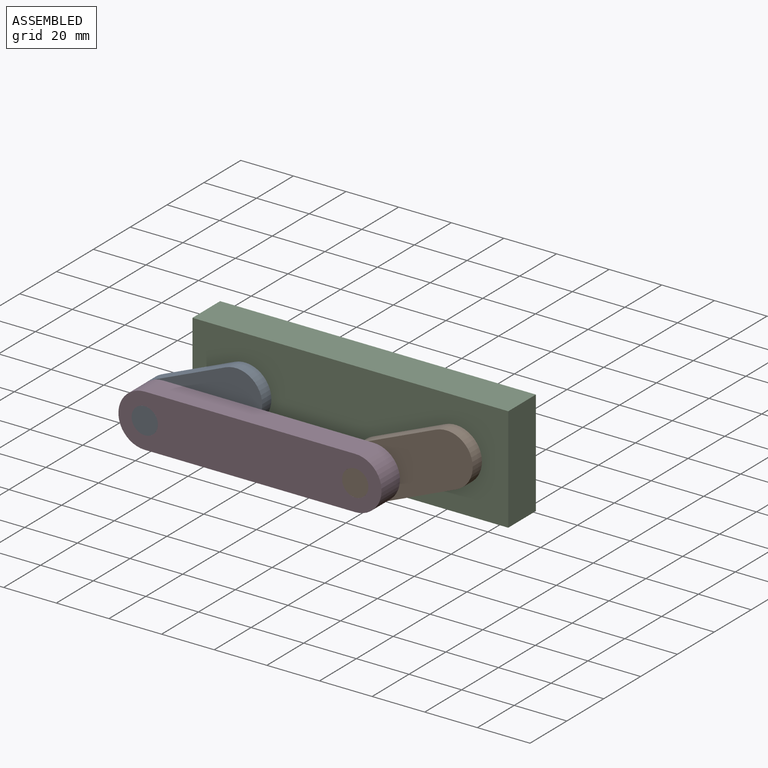
[diagram: assembled view]
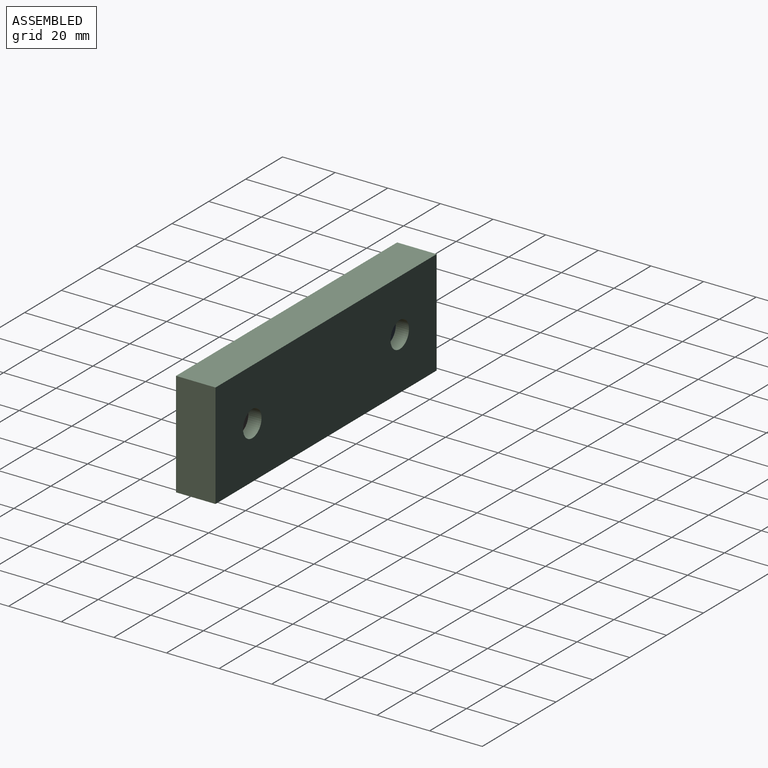
[diagram: assembled view, second angle]
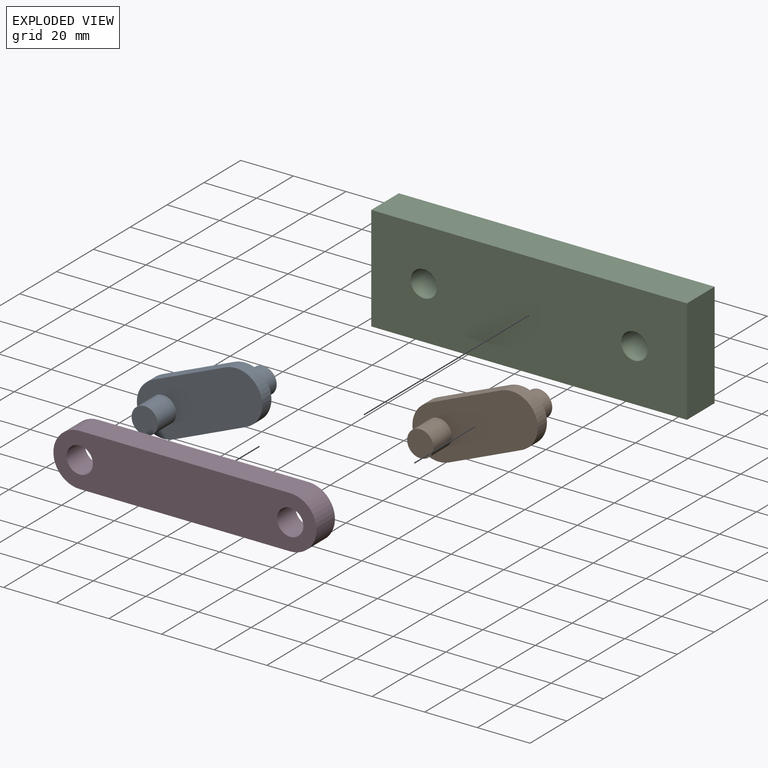
[diagram: exploded view]
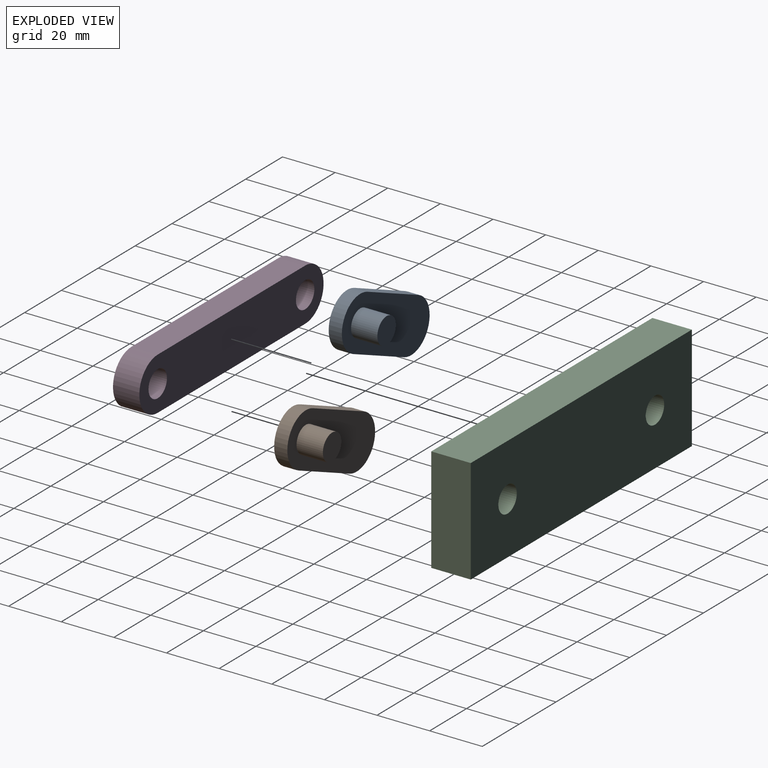
[diagram: exploded view, second angle]
ASSEMBLY  parts=4 mates=4
PART A: 10 faces, bbox 50x25x20 mm
  f0: cylinder r=10mm len=20mm, axis (0,1,0), area 157.1mm2, adj f1,f3,f4,f5
  f1: plane 30x5mm, normal (0,0,1), area 150mm2, adj f0,f2,f4,f5
  f2: cylinder r=10mm len=20mm, axis (0,1,0), area 157.1mm2, adj f1,f3,f4,f5
  f3: plane 30x5mm, normal (0,0,-1), area 150mm2, adj f0,f2,f4,f5
  f4: plane 50x20mm, normal (0,-1,0), area 835.6mm2, adj f0,f1,f2,f3,f6
  f5: plane 50x20mm, normal (0,1,0), area 835.6mm2, adj f0,f1,f2,f3,f8
  f6: cylinder r=5mm len=10mm, axis (0,1,0), area 314.2mm2, adj f4,f7
  f7: plane 10x10mm, normal (0,-1,0), area 78.5mm2, adj f6
  f8: cylinder r=5mm len=10mm, axis (0,-1,0), area 314.2mm2, adj f5,f9
  f9: plane 10x10mm, normal (0,1,0), area 78.5mm2, adj f8
PART B: same geometry as A
PART C: 8 faces, bbox 120x15x40 mm
  f0: plane 120x15mm, normal (0,0,1), area 1800mm2, adj f1,f3,f4,f5
  f1: plane 40x15mm, normal (-1,0,0), area 600mm2, adj f0,f2,f4,f5
  f2: plane 120x15mm, normal (0,0,-1), area 1800mm2, adj f1,f3,f4,f5
  f3: plane 40x15mm, normal (1,0,0), area 600mm2, adj f0,f2,f4,f5
  f4: plane 120x40mm, normal (0,-1,0), area 4642.9mm2, adj f0,f1,f2,f3,f6,f7
  f5: plane 120x40mm, normal (0,1,0), area 4642.9mm2, adj f0,f1,f2,f3,f6,f7
  f6: cylinder r=5mm len=15mm, axis (0,-1,0), area 471.2mm2, adj f4,f5
  f7: cylinder r=5mm len=15mm, axis (0,-1,0), area 471.2mm2, adj f4,f5
PART D: 8 faces, bbox 100x10x20 mm
  f0: cylinder r=10mm len=20mm, axis (0,1,0), area 314.2mm2, adj f1,f3,f4,f5
  f1: plane 80x10mm, normal (0,0,1), area 800mm2, adj f0,f2,f4,f5
  f2: cylinder r=10mm len=20mm, axis (0,1,0), area 314.2mm2, adj f1,f3,f4,f5
  f3: plane 80x10mm, normal (0,0,-1), area 800mm2, adj f0,f2,f4,f5
  f4: plane 100x20mm, normal (0,-1,0), area 1757.1mm2, adj f0,f1,f2,f3,f6,f7
  f5: plane 100x20mm, normal (0,1,0), area 1757.1mm2, adj f0,f1,f2,f3,f6,f7
  f6: cylinder r=5mm len=10mm, axis (0,-1,0), area 314.2mm2, adj f4,f5
  f7: cylinder r=5mm len=10mm, axis (0,-1,0), area 314.2mm2, adj f4,f5
PLACE A rot(axis=(0,-1,0),22.9deg) t=(-35.58,-3.17,9.63)mm
PLACE B rot(axis=(0.2,0,-0.98),180deg) t=(72.07,-3.17,21.29)mm
PLACE C t=(-31.82,6.83,10.5)mm fixed
PLACE D t=(-39.46,-10.67,8.84)mm
MATE revolute D.f2 <-> A.f2  axis (0,1,0) through (-39.46,-5.67,18.84)mm
MATE revolute D.f0 <-> B.f0  axis (0,1,0) through (40.54,-5.67,18.84)mm
MATE revolute A.f0 <-> C.f7  axis (0,-1,0) through (-11.82,9.33,30.5)mm
MATE revolute B.f2 <-> C.f6  axis (0,-1,0) through (68.18,9.33,30.5)mm
